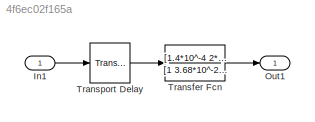
MODEL slx_4f6ec02f165a
KIND model
CONFIG AbsTol = auto
CONFIG EnableMultiTasking = off
CONFIG FixedStep = auto
CONFIG MaxStep = auto
CONFIG MinStep = auto
CONFIG RelTol = 1e-7
CONFIG SampleTimeConstraint = Unconstrained
CONFIG Solver = VariableStepAuto
CONFIG SolverName = VariableStepAuto
CONFIG StartTime = 0.0
CONFIG StopTime = 50000
BLOCK [Inport] In1
  IconDisplay = Port number
BLOCK [Outport] Out1
  IconDisplay = Port number
BLOCK [TransferFcn] Transfer Fcn
  Denominator = [1 3.68*10^-2 2.35752*10^-4 8.2*10^-8 5.0713*10^-12]
  Numerator = [1.4*10^-4 2*10^-7 7.56*10^-12]
BLOCK [TransportDelay] Transport Delay
  DelayTime = 8.5
  Ports = [1, 1]
LINE In1:1 -> Transport Delay:1
LINE Transfer Fcn:1 -> Out1:1
LINE Transport Delay:1 -> Transfer Fcn:1
